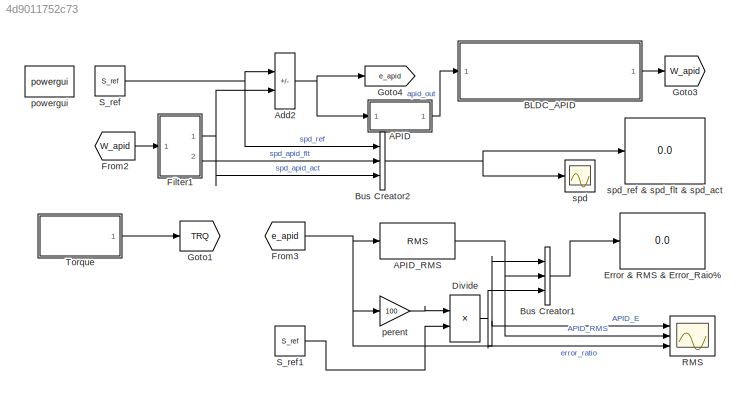
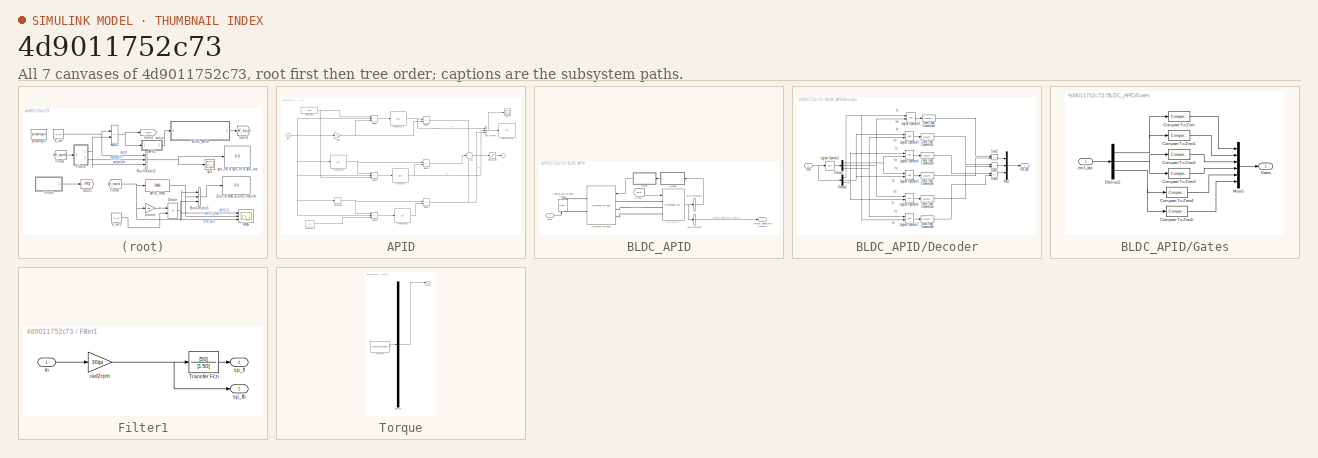
[diagram: thumbnail index - all 7 canvases of the model, root first then tree order]
MODEL slx_4d9011752c73
KIND model
CONFIG AbsTol = 1e-3
CONFIG EnableMultiTasking = on
CONFIG FixedStep = Ts
CONFIG InitFcn = c_boost = 2200e-006;\nf_nom = 50;\nk_Idc = 3;\nk_Vin = 40.6586;\nk_Vref = 0.03;\nk_Vdc = 0.03;\nl_boost = 0.006;\nl_filter = 50E-006;\nr_boost = 1e-003;\nr_line = 1;\nr_load = .04E003;\nS_ref = 3000;\nv_nom = 220;
CONFIG MaxStep = 1e-3
CONFIG MinStep = auto
CONFIG RelTol = 1e-3
CONFIG SampleTimeConstraint = Unconstrained
CONFIG SolverName = ode45
CONFIG StartTime = 0
CONFIG StopTime = 0.4
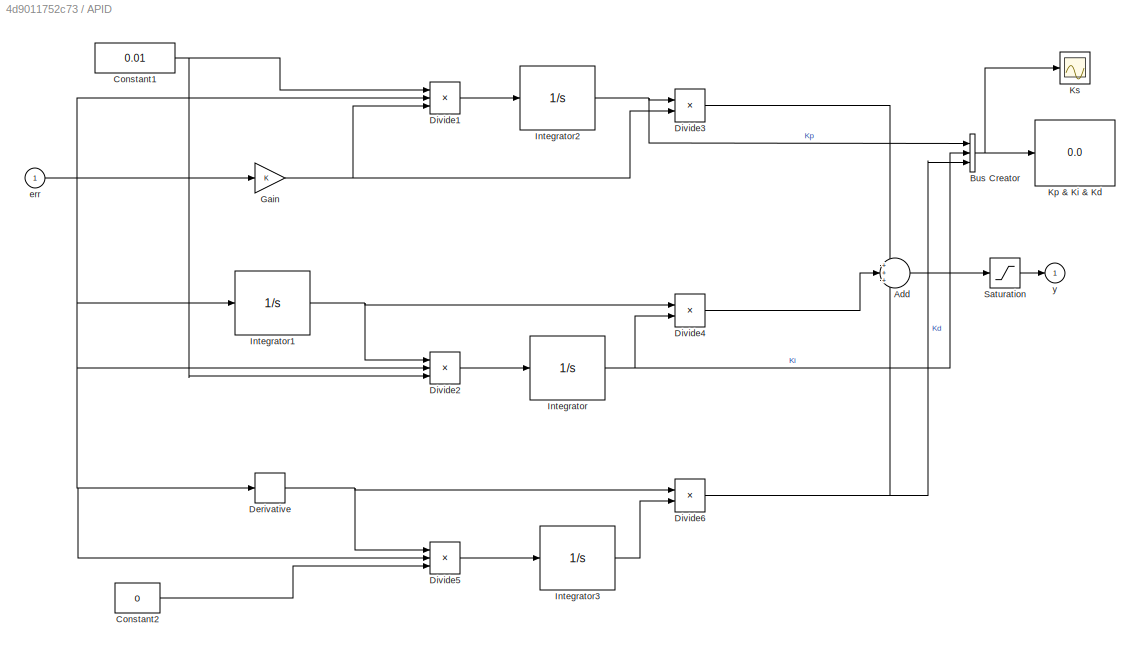
BLOCK [SubSystem] APID
  Ports = [1, 1]
  RequestExecContextInheritance = off
BLOCK [Sum] APID/Add
  Inputs = +++
  Ports = [3, 1]
BLOCK [BusCreator] APID/Bus Creator
  DisplayOption = bar
  InheritFromInputs = on
  Inputs = 3
  Ports = [3, 1]
BLOCK [Constant] APID/Constant1
  Value = 0.01
BLOCK [Constant] APID/Constant2
  Value = 0
BLOCK [Derivative] APID/Derivative
  CoefficientInTFapproximation = 0
BLOCK [Product] APID/Divide1
  Inputs = ***
  Ports = [3, 1]
BLOCK [Product] APID/Divide2
  Inputs = ***
  Ports = [3, 1]
BLOCK [Product] APID/Divide3
  Inputs = **
  Ports = [2, 1]
BLOCK [Product] APID/Divide4
  Inputs = **
  Ports = [2, 1]
BLOCK [Product] APID/Divide5
  Inputs = ***
  Ports = [3, 1]
BLOCK [Product] APID/Divide6
  Inputs = **
  Ports = [2, 1]
BLOCK [Gain] APID/Gain
BLOCK [Integrator] APID/Integrator
  Ports = [1, 1]
  ZeroCross = off
BLOCK [Integrator] APID/Integrator1
  InitialCondition = -2
  Ports = [1, 1]
  ZeroCross = off
BLOCK [Integrator] APID/Integrator2
  Ports = [1, 1]
  ZeroCross = off
BLOCK [Integrator] APID/Integrator3
  Ports = [1, 1]
  ZeroCross = off
BLOCK [Display] APID/Kp & Ki & Kd
  Decimation = 1
  Ports = [1]
BLOCK [Scope] APID/Ks
  Floating = off
  NumInputPorts = 1
  Ports = [1]
  ScopeSpecificationString = Simulink.scopes.TimeScopeBlockCfg('CurrentConfiguration', extmgr.ConfigurationSet(extmgr.Configuration('Core','General UI',true),extmgr.Configuration('Core','Source UI',true),extmgr.Configuration('Sources','WiredSimulink',true,'DataLoggingVariableName','ScopeData1'),extmgr.Configuration('Visuals','Time Domain',true,'SerializedDisplays',{struct('MinYLimReal','-401.01578','MaxYLimReal','3609.142','Y...<+1479ch>
BLOCK [Saturate] APID/Saturation
  LowerLimit = -1000
  UpperLimit = 1000
BLOCK [Inport] APID/err
BLOCK [Outport] APID/y
  InitialOutput = 0
  VectorParamsAs1DForOutWhenUnconnected = off
BLOCK [Reference] APID_RMS  REF=dspstat3/RMS
  Ports = [1, 1]
  SourceBlock = dspstat3/RMS
  SourceProductBaseCode = DS
  SourceType = RMS
  UserDataPersistent = on
BLOCK [Sum] Add2
  IconShape = rectangular
  Inputs = |+-
  Ports = [2, 1]
BLOCK [SubSystem] BLDC_APID
  Ports = [1, 1]
  RequestExecContextInheritance = off
BLOCK [Outport] BLDC_APID/<Rotor speed wm (rad//s)>
  VectorParamsAs1DForOutWhenUnconnected = off
BLOCK [Reference] BLDC_APID/B.L.D.C.1  REF=spsPermanentMagnetSynchronousMachineLib/Permanent Magnet
Synchronous Machine
  Ports = [1, 1, 0, 0, 0, 3]
  SourceBlock = spsPermanentMagnetSynchronousMachineLib/Permanent Magnet\nSynchronous Machine
  SourceProductBaseCode = PS
  SourceType = Permanent Magnet Synchronous Machine
BLOCK [BusSelector] BLDC_APID/Bus Selector
  OutputSignals = Rotor speed wm (rad/s)
  Ports = [1, 1]
BLOCK [BusSelector] BLDC_APID/Bus Selector1
  OutputAsBus = on
  OutputSignals = Hall effect signal h_a,Hall effect signal h_b,Hall effect signal h_c
  Ports = [1, 1]
BLOCK [Reference] BLDC_APID/Controlled Voltage Source  REF=spsControlledVoltageSourceLib/Controlled Voltage Source
  NameLocation = right
  Ports = [1, 0, 0, 0, 0, 1, 1]
  SourceBlock = spsControlledVoltageSourceLib/Controlled Voltage Source
  SourceProductBaseCode = PS
  SourceType = Controlled Voltage Source
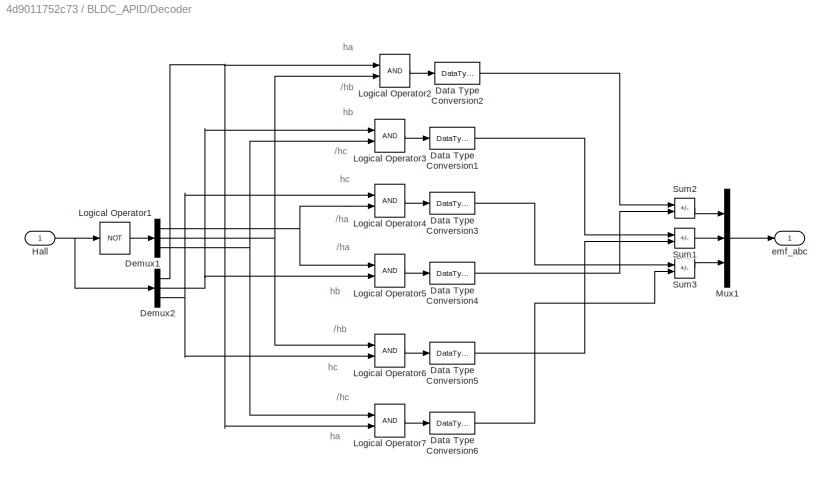
BLOCK [SubSystem] BLDC_APID/Decoder
  NameLocation = top
  Ports = [1, 1]
  RequestExecContextInheritance = off
BLOCK [DataTypeConversion] BLDC_APID/Decoder/Data Type Conversion1
  RndMeth = Floor
  SaturateOnIntegerOverflow = off
BLOCK [DataTypeConversion] BLDC_APID/Decoder/Data Type Conversion2
  RndMeth = Floor
  SaturateOnIntegerOverflow = off
BLOCK [DataTypeConversion] BLDC_APID/Decoder/Data Type Conversion3
  RndMeth = Floor
  SaturateOnIntegerOverflow = off
BLOCK [DataTypeConversion] BLDC_APID/Decoder/Data Type Conversion4
  RndMeth = Floor
  SaturateOnIntegerOverflow = off
BLOCK [DataTypeConversion] BLDC_APID/Decoder/Data Type Conversion5
  RndMeth = Floor
  SaturateOnIntegerOverflow = off
BLOCK [DataTypeConversion] BLDC_APID/Decoder/Data Type Conversion6
  RndMeth = Floor
  SaturateOnIntegerOverflow = off
BLOCK [Demux] BLDC_APID/Decoder/Demux1
  Outputs = 3
  Ports = [1, 3]
BLOCK [Demux] BLDC_APID/Decoder/Demux2
  Outputs = 3
  Ports = [1, 3]
BLOCK [Inport] BLDC_APID/Decoder/Hall 
BLOCK [Logic] BLDC_APID/Decoder/Logical Operator1
  AllPortsSameDT = off
  Operator = NOT
  OutDataTypeStr = boolean
  Ports = [1, 1]
BLOCK [Logic] BLDC_APID/Decoder/Logical Operator2
  AllPortsSameDT = off
  OutDataTypeStr = boolean
  Ports = [2, 1]
BLOCK [Logic] BLDC_APID/Decoder/Logical Operator3
  AllPortsSameDT = off
  OutDataTypeStr = boolean
  Ports = [2, 1]
BLOCK [Logic] BLDC_APID/Decoder/Logical Operator4
  AllPortsSameDT = off
  OutDataTypeStr = boolean
  Ports = [2, 1]
BLOCK [Logic] BLDC_APID/Decoder/Logical Operator5
  AllPortsSameDT = off
  OutDataTypeStr = boolean
  Ports = [2, 1]
BLOCK [Logic] BLDC_APID/Decoder/Logical Operator6
  AllPortsSameDT = off
  OutDataTypeStr = boolean
  Ports = [2, 1]
BLOCK [Logic] BLDC_APID/Decoder/Logical Operator7
  AllPortsSameDT = off
  OutDataTypeStr = boolean
  Ports = [2, 1]
BLOCK [Mux] BLDC_APID/Decoder/Mux1
  DisplayOption = bar
  Inputs = 3
  Ports = [3, 1]
BLOCK [Sum] BLDC_APID/Decoder/Sum1
  IconShape = rectangular
  Inputs = +-
  OutDataTypeStr = double
  Ports = [2, 1]
BLOCK [Sum] BLDC_APID/Decoder/Sum2
  IconShape = rectangular
  Inputs = +-
  OutDataTypeStr = double
  Ports = [2, 1]
BLOCK [Sum] BLDC_APID/Decoder/Sum3
  IconShape = rectangular
  Inputs = +-
  OutDataTypeStr = double
  Ports = [2, 1]
BLOCK [Outport] BLDC_APID/Decoder/emf_abc
  VectorParamsAs1DForOutWhenUnconnected = off
BLOCK [From] BLDC_APID/From2
  GotoTag = TRQ
  IconDisplay = Tag and signal name
  TagVisibility = global
BLOCK [SubSystem] BLDC_APID/Gates
  NameLocation = top
  Ports = [1, 1]
  RequestExecContextInheritance = off
BLOCK [Reference] BLDC_APID/Gates/Compare To Zero  REF=simulink/Logic and Bit
Operations/Compare
To Zero
  Ports = [1, 1]
  SourceBlock = simulink/Logic and Bit\nOperations/Compare\nTo Zero
  SourceProductBaseCode = SL
  SourceType = Compare To Zero
BLOCK [Reference] BLDC_APID/Gates/Compare To Zero1  REF=simulink/Logic and Bit
Operations/Compare
To Zero
  Ports = [1, 1]
  SourceBlock = simulink/Logic and Bit\nOperations/Compare\nTo Zero
  SourceProductBaseCode = SL
  SourceType = Compare To Zero
BLOCK [Reference] BLDC_APID/Gates/Compare To Zero2  REF=simulink/Logic and Bit
Operations/Compare
To Zero
  Ports = [1, 1]
  SourceBlock = simulink/Logic and Bit\nOperations/Compare\nTo Zero
  SourceProductBaseCode = SL
  SourceType = Compare To Zero
BLOCK [Reference] BLDC_APID/Gates/Compare To Zero3  REF=simulink/Logic and Bit
Operations/Compare
To Zero
  Ports = [1, 1]
  SourceBlock = simulink/Logic and Bit\nOperations/Compare\nTo Zero
  SourceProductBaseCode = SL
  SourceType = Compare To Zero
BLOCK [Reference] BLDC_APID/Gates/Compare To Zero4  REF=simulink/Logic and Bit
Operations/Compare
To Zero
  Ports = [1, 1]
  SourceBlock = simulink/Logic and Bit\nOperations/Compare\nTo Zero
  SourceProductBaseCode = SL
  SourceType = Compare To Zero
BLOCK [Reference] BLDC_APID/Gates/Compare To Zero5  REF=simulink/Logic and Bit
Operations/Compare
To Zero
  Ports = [1, 1]
  SourceBlock = simulink/Logic and Bit\nOperations/Compare\nTo Zero
  SourceProductBaseCode = SL
  SourceType = Compare To Zero
BLOCK [Demux] BLDC_APID/Gates/Demux2
  Outputs = 3
  Ports = [1, 3]
BLOCK [Outport] BLDC_APID/Gates/Gates
  VectorParamsAs1DForOutWhenUnconnected = off
BLOCK [Mux] BLDC_APID/Gates/Mux3
  DisplayOption = bar
  Inputs = 6
  Ports = [6, 1]
BLOCK [Inport] BLDC_APID/Gates/emf_abc 
BLOCK [Reference] BLDC_APID/Universal Bridge1  REF=spsUniversalBridgeLib/Universal Bridge
  Ports = [1, 0, 0, 0, 0, 3, 2]
  SourceBlock = spsUniversalBridgeLib/Universal Bridge
  SourceProductBaseCode = PS
  SourceType = Universal Bridge
BLOCK [Inport] BLDC_APID/apid
BLOCK [BusCreator] Bus Creator1
  DisplayOption = bar
  InheritFromInputs = on
  Inputs = 3
  Ports = [3, 1]
BLOCK [BusCreator] Bus Creator2
  DisplayOption = bar
  InheritFromInputs = on
  Inputs = 3
  Ports = [3, 1]
BLOCK [Product] Divide
  Inputs = */
  Ports = [2, 1]
BLOCK [Display] Error & RMS & Error_Raio%
  Decimation = 1
  Ports = [1]
BLOCK [SubSystem] Filter1
  Ports = [1, 2]
  RequestExecContextInheritance = off
BLOCK [Inport] Filter1/In
BLOCK [TransferFcn] Filter1/Transfer Fcn
  Denominator = [1 50]
  Numerator = [50]
BLOCK [Gain] Filter1/rad2rpm
  Gain = 30/pi
BLOCK [Outport] Filter1/sp_fb
  VectorParamsAs1DForOutWhenUnconnected = off
BLOCK [Outport] Filter1/sp_fl
  Port = 2
  VectorParamsAs1DForOutWhenUnconnected = off
BLOCK [From] From2
  GotoTag = W_apid
  TagVisibility = global
BLOCK [From] From3
  GotoTag = e_apid
  TagVisibility = global
BLOCK [Goto] Goto1
  GotoTag = TRQ
  IconDisplay = Tag and signal name
  TagVisibility = global
BLOCK [Goto] Goto3
  GotoTag = W_apid
  TagVisibility = global
BLOCK [Goto] Goto4
  GotoTag = e_apid
  IconDisplay = Tag and signal name
  TagVisibility = global
BLOCK [Scope] RMS
  Floating = off
  NumInputPorts = 3
  Ports = [3]
  ScopeSpecificationString = Simulink.scopes.TimeScopeBlockCfg('CurrentConfiguration', extmgr.ConfigurationSet(extmgr.Configuration('Core','General UI',true),extmgr.Configuration('Core','Source UI',true),extmgr.Configuration('Sources','WiredSimulink',true,'DataLoggingVariableName','ScopeData3'),extmgr.Configuration('Visuals','Time Domain',true,'SerializedDisplays',{struct('MinYLimReal','-777.12241','MaxYLimReal','3419.68027',...<+2740ch>
BLOCK [Constant] S_ref
  Value = S_ref
BLOCK [Constant] S_ref1
  Value = S_ref
BLOCK [SubSystem] Torque
  ClipboardFcn = sigbuilder_block('clipboard');
  CloseFcn = sigbuilder_block('close');
  ContinueFcn = sigbuilder_block('continue');
  CopyFcn = sigbuilder_block('copy');
  DeleteFcn = sigbuilder_block('delete');
  LoadFcn = sigbuilder_block('load');
  MaskHideContents = on
  ModelCloseFcn = sigbuilder_block('modelClose');
  NameChangeFcn = sigbuilder_block('namechange');
  OpenFcn = sigbuilder_block('open',[46.5 196.5 1012.5 447.75 ]);
  PauseFcn = sigbuilder_block('pause');
  Ports = [0, 1]
  PreSaveFcn = sigbuilder_block('preSave');
  RequestExecContextInheritance = off
  StartFcn = sigbuilder_block('start');
  StopFcn = sigbuilder_block('stop');
  Tag = STV Subsys
BLOCK [Demux] Torque/Demux
  DisplayOption = none
  Outputs = 1
  Ports = [1, 1]
  Tag = STV Demux
BLOCK [FromWorkspace] Torque/FromWs
  Tag = STV FromWs
  VariableName = tuvar
BLOCK [Outport] Torque/Torque
  Tag = STV Outport
  VectorParamsAs1DForOutWhenUnconnected = off
BLOCK [Gain] perent
  Gain = 100
BLOCK [Reference] powergui  REF=spspowerguiLib/powergui
  Ports = []
  SourceBlock = spspowerguiLib/powergui
  SourceProductBaseCode = PS
  SourceType = PSB option menu block
BLOCK [Scope] spd
  Floating = off
  NumInputPorts = 1
  Ports = [1]
  ScopeSpecificationString = Simulink.scopes.TimeScopeBlockCfg('CurrentConfiguration', extmgr.ConfigurationSet(extmgr.Configuration('Core','General UI',true),extmgr.Configuration('Core','Source UI',true),extmgr.Configuration('Sources','WiredSimulink',true,'DataLoggingVariableName','ScopeData2'),extmgr.Configuration('Visuals','Time Domain',true,'SerializedDisplays',{struct('MinYLimReal','-401.01578','MaxYLimReal','3609.142','Y...<+1504ch>
BLOCK [Display] spd_ref & spd_flt & spd_act
  Decimation = 1
  Ports = [1]
ANNOTATION BLDC_APID/Decoder: /ha
ANNOTATION BLDC_APID/Decoder: /hb
ANNOTATION BLDC_APID/Decoder: /hc
ANNOTATION BLDC_APID/Decoder: ha
ANNOTATION BLDC_APID/Decoder: hb
ANNOTATION BLDC_APID/Decoder: hc
LINE APID/Add:1 -> APID/Saturation:1
NET APID/Bus Creator:1 -> APID/Kp & Ki & Kd:1, APID/Ks:1
NET APID/Constant1:1 -> APID/Divide1:1, APID/Divide2:3
LINE APID/Constant2:1 -> APID/Divide5:3
NET APID/Derivative:1 -> APID/Divide5:1, APID/Divide6:1
LINE APID/Divide1:1 -> APID/Integrator2:1
LINE APID/Divide2:1 -> APID/Integrator:1
LINE APID/Divide3:1 -> APID/Add:1
LINE APID/Divide4:1 -> APID/Add:2
LINE APID/Divide5:1 -> APID/Integrator3:1
NET APID/Divide6:1 -> APID/Add:3, APID/Bus Creator:3
NET APID/Gain:1 -> APID/Divide1:3, APID/Divide3:2
NET APID/Integrator1:1 -> APID/Divide2:1, APID/Divide4:1
NET APID/Integrator2:1 -> APID/Bus Creator:1, APID/Divide3:1
LINE APID/Integrator3:1 -> APID/Divide6:2
NET APID/Integrator:1 -> APID/Bus Creator:2, APID/Divide4:2
LINE APID/Saturation:1 -> APID/y:1
NET APID/err:1 -> APID/Derivative:1, APID/Divide1:2, APID/Divide2:2, APID/Divide5:2, APID/Gain:1, APID/Integrator1:1
LINE APID:1 -> BLDC_APID:1
NET APID_RMS:1 -> Bus Creator1:2, RMS:2
NET Add2:1 -> APID:1, Goto4:1
NET BLDC_APID/B.L.D.C.1:1 -> BLDC_APID/Bus Selector1:1, BLDC_APID/Bus Selector:1
LINE BLDC_APID/Bus Selector1:1 -> BLDC_APID/Decoder:1
LINE BLDC_APID/Bus Selector:1 -> BLDC_APID/<Rotor speed wm (rad//s)>:1
LINE BLDC_APID/Decoder/Data Type Conversion1:1 -> BLDC_APID/Decoder/Sum1:1
LINE BLDC_APID/Decoder/Data Type Conversion2:1 -> BLDC_APID/Decoder/Sum2:1
LINE BLDC_APID/Decoder/Data Type Conversion3:1 -> BLDC_APID/Decoder/Sum3:1
LINE BLDC_APID/Decoder/Data Type Conversion4:1 -> BLDC_APID/Decoder/Sum2:2
LINE BLDC_APID/Decoder/Data Type Conversion5:1 -> BLDC_APID/Decoder/Sum1:2
LINE BLDC_APID/Decoder/Data Type Conversion6:1 -> BLDC_APID/Decoder/Sum3:2
NET BLDC_APID/Decoder/Demux1:1 -> BLDC_APID/Decoder/Logical Operator4:2, BLDC_APID/Decoder/Logical Operator5:1
NET BLDC_APID/Decoder/Demux1:2 -> BLDC_APID/Decoder/Logical Operator2:2, BLDC_APID/Decoder/Logical Operator6:1
NET BLDC_APID/Decoder/Demux1:3 -> BLDC_APID/Decoder/Logical Operator3:2, BLDC_APID/Decoder/Logical Operator7:1
NET BLDC_APID/Decoder/Demux2:1 -> BLDC_APID/Decoder/Logical Operator2:1, BLDC_APID/Decoder/Logical Operator7:2
NET BLDC_APID/Decoder/Demux2:2 -> BLDC_APID/Decoder/Logical Operator3:1, BLDC_APID/Decoder/Logical Operator5:2
NET BLDC_APID/Decoder/Demux2:3 -> BLDC_APID/Decoder/Logical Operator4:1, BLDC_APID/Decoder/Logical Operator6:2
NET BLDC_APID/Decoder/Hall :1 -> BLDC_APID/Decoder/Demux2:1, BLDC_APID/Decoder/Logical Operator1:1
LINE BLDC_APID/Decoder/Logical Operator1:1 -> BLDC_APID/Decoder/Demux1:1
LINE BLDC_APID/Decoder/Logical Operator2:1 -> BLDC_APID/Decoder/Data Type Conversion2:1
LINE BLDC_APID/Decoder/Logical Operator3:1 -> BLDC_APID/Decoder/Data Type Conversion1:1
LINE BLDC_APID/Decoder/Logical Operator4:1 -> BLDC_APID/Decoder/Data Type Conversion3:1
LINE BLDC_APID/Decoder/Logical Operator5:1 -> BLDC_APID/Decoder/Data Type Conversion4:1
LINE BLDC_APID/Decoder/Logical Operator6:1 -> BLDC_APID/Decoder/Data Type Conversion5:1
LINE BLDC_APID/Decoder/Logical Operator7:1 -> BLDC_APID/Decoder/Data Type Conversion6:1
LINE BLDC_APID/Decoder/Mux1:1 -> BLDC_APID/Decoder/emf_abc:1
LINE BLDC_APID/Decoder/Sum1:1 -> BLDC_APID/Decoder/Mux1:2
LINE BLDC_APID/Decoder/Sum2:1 -> BLDC_APID/Decoder/Mux1:1
LINE BLDC_APID/Decoder/Sum3:1 -> BLDC_APID/Decoder/Mux1:3
LINE BLDC_APID/Decoder:1 -> BLDC_APID/Gates:1
LINE BLDC_APID/From2:1 -> BLDC_APID/B.L.D.C.1:1
LINE BLDC_APID/Gates/Compare To Zero1:1 -> BLDC_APID/Gates/Mux3:2
LINE BLDC_APID/Gates/Compare To Zero2:1 -> BLDC_APID/Gates/Mux3:3
LINE BLDC_APID/Gates/Compare To Zero3:1 -> BLDC_APID/Gates/Mux3:4
LINE BLDC_APID/Gates/Compare To Zero4:1 -> BLDC_APID/Gates/Mux3:5
LINE BLDC_APID/Gates/Compare To Zero5:1 -> BLDC_APID/Gates/Mux3:6
LINE BLDC_APID/Gates/Compare To Zero:1 -> BLDC_APID/Gates/Mux3:1
NET BLDC_APID/Gates/Demux2:1 -> BLDC_APID/Gates/Compare To Zero1:1, BLDC_APID/Gates/Compare To Zero:1
NET BLDC_APID/Gates/Demux2:2 -> BLDC_APID/Gates/Compare To Zero2:1, BLDC_APID/Gates/Compare To Zero3:1
NET BLDC_APID/Gates/Demux2:3 -> BLDC_APID/Gates/Compare To Zero4:1, BLDC_APID/Gates/Compare To Zero5:1
LINE BLDC_APID/Gates/Mux3:1 -> BLDC_APID/Gates/Gates:1
LINE BLDC_APID/Gates/emf_abc :1 -> BLDC_APID/Gates/Demux2:1
LINE BLDC_APID/Gates:1 -> BLDC_APID/Universal Bridge1:1
LINE BLDC_APID/apid:1 -> BLDC_APID/Controlled Voltage Source:1
LINE BLDC_APID:1 -> Goto3:1
LINE Bus Creator1:1 -> Error & RMS & Error_Raio%:1
NET Bus Creator2:1 -> spd:1, spd_ref & spd_flt & spd_act:1
NET Divide:1 -> Bus Creator1:3, RMS:3
LINE Filter1/In:1 -> Filter1/rad2rpm:1
LINE Filter1/Transfer Fcn:1 -> Filter1/sp_fl:1
NET Filter1/rad2rpm:1 -> Filter1/Transfer Fcn:1, Filter1/sp_fb:1
NET Filter1:1 -> Add2:2, Bus Creator2:3
LINE Filter1:2 -> Bus Creator2:2
LINE From2:1 -> Filter1:1
NET From3:1 -> APID_RMS:1, Bus Creator1:1, RMS:1, perent:1
LINE S_ref1:1 -> Divide:2
NET S_ref:1 -> Add2:1, Bus Creator2:1
LINE Torque:1 -> Goto1:1
LINE perent:1 -> Divide:1
PLINE BLDC_APID/B.L.D.C.1:LConn1 -- BLDC_APID/Universal Bridge1:LConn1
PLINE BLDC_APID/B.L.D.C.1:LConn2 -- BLDC_APID/Universal Bridge1:LConn2
PLINE BLDC_APID/B.L.D.C.1:LConn3 -- BLDC_APID/Universal Bridge1:LConn3
PLINE BLDC_APID/Controlled Voltage Source:LConn1 -- BLDC_APID/Universal Bridge1:RConn2
PLINE BLDC_APID/Controlled Voltage Source:RConn1 -- BLDC_APID/Universal Bridge1:RConn1
note: NET lines group one-source signal fan-out (src -> all destinations, sorted); 1:1 wires keep LINE
